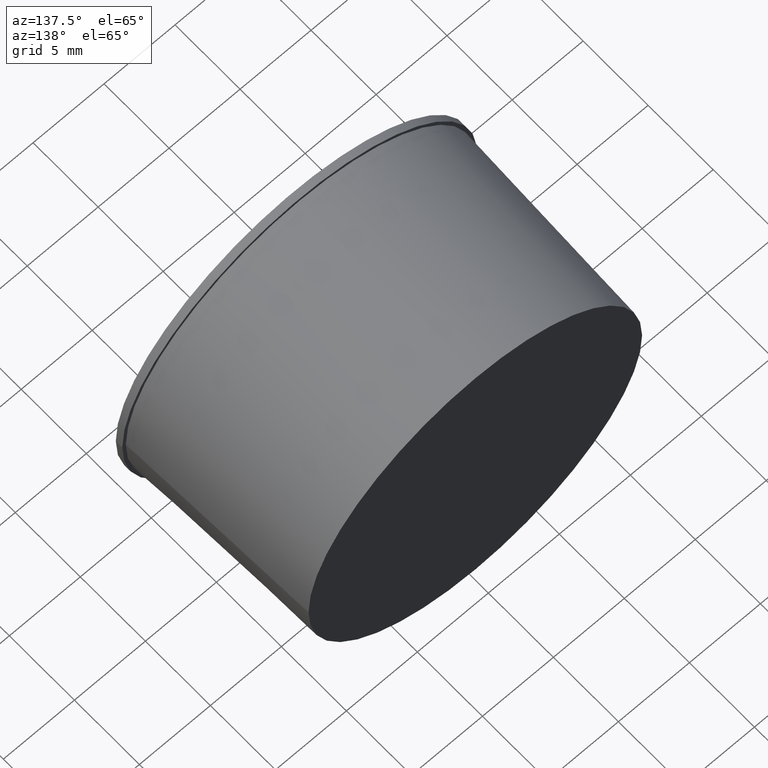
[diagram: clean part render]
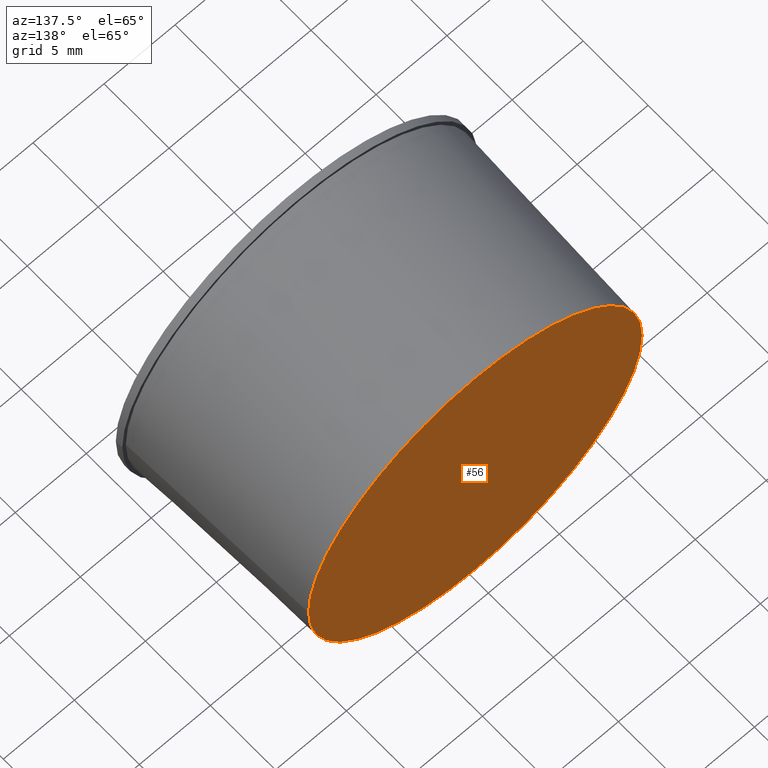
[diagram: same view with one face highlighted and labeled with its STEP entity id]
A machine part, auxiliary view. The second image highlights one B-rep face of the part: STEP entity #56.
In plain terms, the highlighted planar face has unit normal (-0, 1, 0).
Its self-contained STEP definition (entity closure, byte-faithful):
#20=FACE_OUTER_BOUND('',#25,.T.);
#25=EDGE_LOOP('',(#45));
#33=CIRCLE('',#64,11.75);
#37=VERTEX_POINT('',#94);
#41=EDGE_CURVE('',#37,#37,#33,.T.);
#45=ORIENTED_EDGE('',*,*,#41,.F.);
#53=PLANE('',#63);
#56=ADVANCED_FACE('',(#20),#53,.T.);
#63=AXIS2_PLACEMENT_3D('',#93,#74,#75);
#64=AXIS2_PLACEMENT_3D('',#95,#76,#77);
#74=DIRECTION('center_axis',(-6.12323399573679E-17,1.,0.));
#75=DIRECTION('ref_axis',(0.,0.,1.));
#76=DIRECTION('center_axis',(6.12323399573679E-17,-1.,0.));
#77=DIRECTION('ref_axis',(1.,6.12323399573679E-17,0.));
#93=CARTESIAN_POINT('Origin',(11.75,14.,0.));
#94=CARTESIAN_POINT('',(11.75,14.,0.));
#95=CARTESIAN_POINT('Origin',(-8.57252759403151E-16,14.,0.));